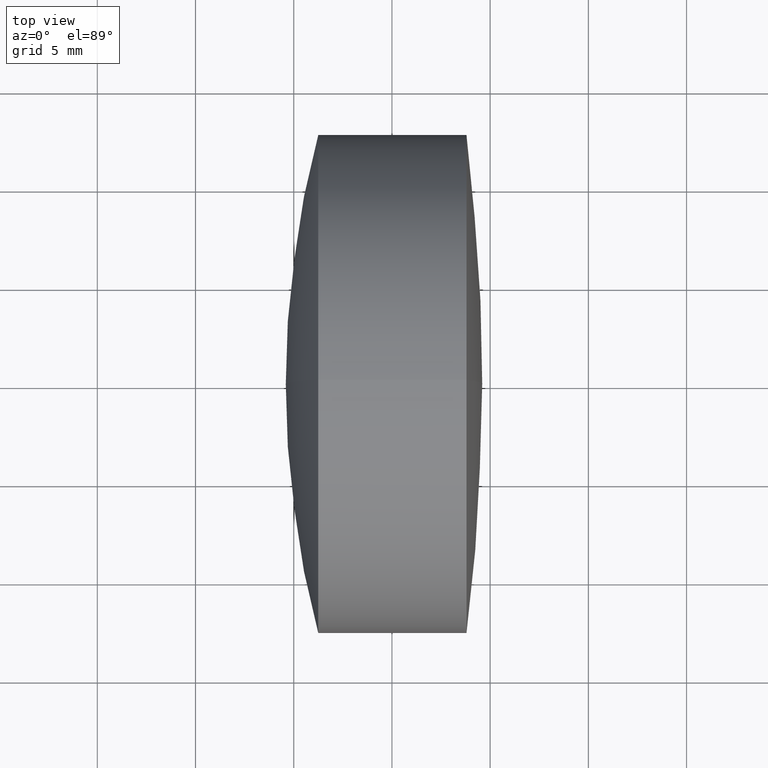
[diagram: clean part render]
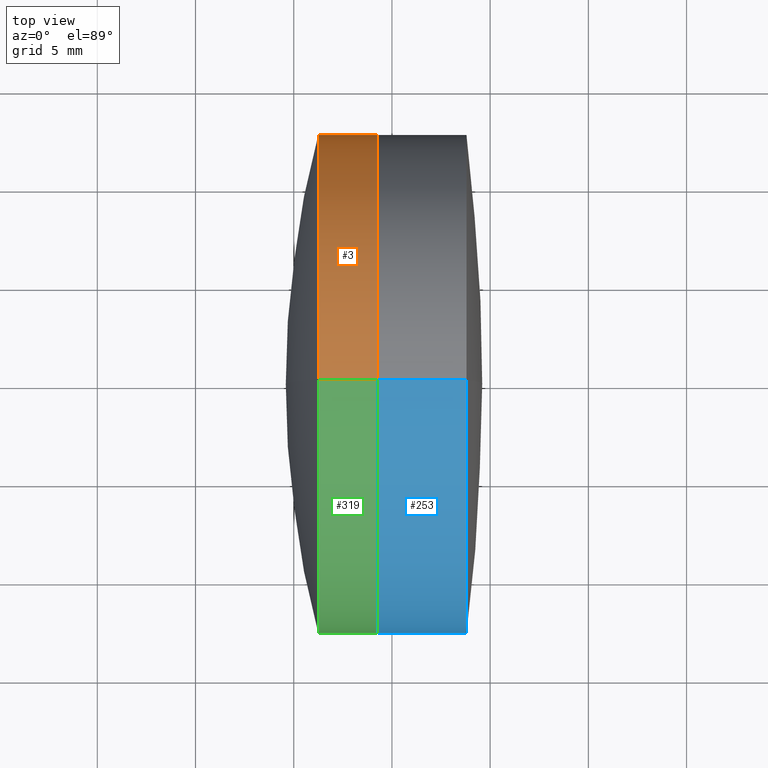
[diagram: same view with three faces highlighted in distinct colors, each labeled with its STEP entity id]
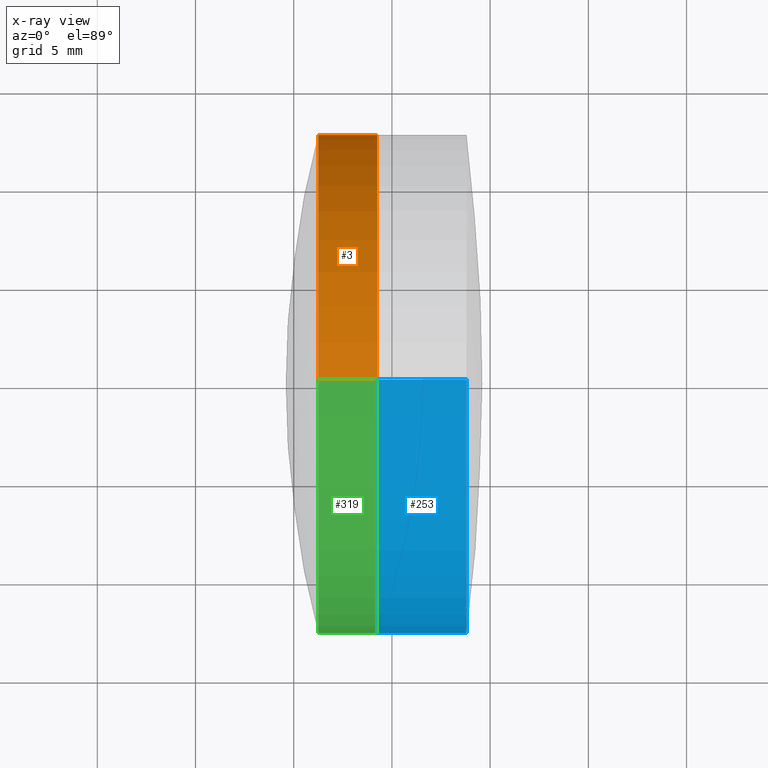
[diagram: x-ray of the same camera — body ghosted, the three highlighted faces saturated]
A machine part, top view with three faces highlighted in distinct colors.
The next image is the same camera in x-ray (body ghosted, the three faces saturated) — at least one of them is partly hidden behind the body in this view.
Their STEP definitions:

[orange] entity #3 — the highlighted cylindrical surface (partial cylindrical patch) has radius 12.7 mm, axis along (-1, -0, -0).
#3 = ADVANCED_FACE ( 'NONE', ( #147 ), #324, .T. ) ;
#9 = VECTOR ( 'NONE', #164, 1000.000000000000000 ) ;
#16 = EDGE_LOOP ( 'NONE', ( #70, #318, #228, #256 ) ) ;
#52 = EDGE_CURVE ( 'NONE', #74, #299, #307, .T. ) ;
#62 = CARTESIAN_POINT ( 'NONE',  ( 161.8331716928335000, 0.0000000000000000000, 0.0000000000000000000 ) ) ;
#67 = VECTOR ( 'NONE', #190, 1000.000000000000000 ) ;
#70 = ORIENTED_EDGE ( 'NONE', *, *, #118, .T. ) ;
#73 = DIRECTION ( 'NONE',  ( -1.000000000000000000, -0.0000000000000000000, -0.0000000000000000000 ) ) ;
#74 = VERTEX_POINT ( 'NONE', #188 ) ;
#76 = DIRECTION ( 'NONE',  ( 0.0000000000000000000, 0.0000000000000000000, 1.000000000000000000 ) ) ;
#83 = VERTEX_POINT ( 'NONE', #223 ) ;
#118 = EDGE_CURVE ( 'NONE', #343, #74, #238, .T. ) ;
#129 = EDGE_CURVE ( 'NONE', #83, #299, #247, .T. ) ;
#130 = CARTESIAN_POINT ( 'NONE',  ( 241.2493130870641400, 1.555301434917139200E-015, -12.70000000000001000 ) ) ;
#138 = CARTESIAN_POINT ( 'NONE',  ( 161.8331716928335000, 0.0000000000000000000, 12.69999999999999600 ) ) ;
#140 = LINE ( 'NONE', #138, #67 ) ;
#145 = CARTESIAN_POINT ( 'NONE',  ( 244.2464114144539700, 0.0000000000000000000, 12.69999999999999600 ) ) ;
#147 = FACE_OUTER_BOUND ( 'NONE', #16, .T. ) ;
#151 = CARTESIAN_POINT ( 'NONE',  ( 161.8331716928335000, 1.555301434917138000E-015, -12.69999999999999600 ) ) ;
#164 = DIRECTION ( 'NONE',  ( -1.000000000000000000, -0.0000000000000000000, -0.0000000000000000000 ) ) ;
#188 = CARTESIAN_POINT ( 'NONE',  ( 244.2464114144539700, 1.555301434917138000E-015, -12.69999999999999600 ) ) ;
#190 = DIRECTION ( 'NONE',  ( -1.000000000000000000, -0.0000000000000000000, -0.0000000000000000000 ) ) ;
#216 = EDGE_CURVE ( 'NONE', #343, #83, #140, .T. ) ;
#223 = CARTESIAN_POINT ( 'NONE',  ( 241.2493130870641400, 0.0000000000000000000, 12.70000000000000600 ) ) ;
#228 = ORIENTED_EDGE ( 'NONE', *, *, #129, .F. ) ;
#229 = AXIS2_PLACEMENT_3D ( 'NONE', #334, #337, #338 ) ;
#238 = CIRCLE ( 'NONE', #321, 12.69999999999999600 ) ;
#247 = CIRCLE ( 'NONE', #229, 12.69999999999999600 ) ;
#256 = ORIENTED_EDGE ( 'NONE', *, *, #216, .F. ) ;
#299 = VERTEX_POINT ( 'NONE', #130 ) ;
#307 = LINE ( 'NONE', #151, #9 ) ;
#318 = ORIENTED_EDGE ( 'NONE', *, *, #52, .T. ) ;
#320 = CARTESIAN_POINT ( 'NONE',  ( 244.2464114144539700, 0.0000000000000000000, 0.0000000000000000000 ) ) ;
#321 = AXIS2_PLACEMENT_3D ( 'NONE', #320, #329, #330 ) ;
#324 = CYLINDRICAL_SURFACE ( 'NONE', #347, 12.69999999999999600 ) ;
#329 = DIRECTION ( 'NONE',  ( -1.000000000000000000, -0.0000000000000000000, -0.0000000000000000000 ) ) ;
#330 = DIRECTION ( 'NONE',  ( 0.0000000000000000000, 0.0000000000000000000, 1.000000000000000000 ) ) ;
#334 = CARTESIAN_POINT ( 'NONE',  ( 241.2493130870641400, 0.0000000000000000000, 0.0000000000000000000 ) ) ;
#337 = DIRECTION ( 'NONE',  ( -1.000000000000000000, -0.0000000000000000000, -0.0000000000000000000 ) ) ;
#338 = DIRECTION ( 'NONE',  ( 0.0000000000000000000, 0.0000000000000000000, 1.000000000000000000 ) ) ;
#343 = VERTEX_POINT ( 'NONE', #145 ) ;
#347 = AXIS2_PLACEMENT_3D ( 'NONE', #62, #73, #76 ) ;

[blue] entity #253 — the highlighted cylindrical surface (partial cylindrical patch) has radius 12.7 mm, axis along (-1, -0, -0).
#20 = DIRECTION ( 'NONE',  ( -1.000000000000000000, -0.0000000000000000000, -0.0000000000000000000 ) ) ;
#22 = ORIENTED_EDGE ( 'NONE', *, *, #173, .T. ) ;
#33 = ORIENTED_EDGE ( 'NONE', *, *, #78, .F. ) ;
#34 = EDGE_CURVE ( 'NONE', #109, #55, #250, .T. ) ;
#36 = CARTESIAN_POINT ( 'NONE',  ( 244.2464114144539700, 0.0000000000000000000, 12.69999999999999600 ) ) ;
#44 = FACE_OUTER_BOUND ( 'NONE', #95, .T. ) ;
#55 = VERTEX_POINT ( 'NONE', #79 ) ;
#66 = LINE ( 'NONE', #156, #269 ) ;
#69 = VECTOR ( 'NONE', #20, 1000.000000000000000 ) ;
#78 = EDGE_CURVE ( 'NONE', #336, #281, #280, .T. ) ;
#79 = CARTESIAN_POINT ( 'NONE',  ( 248.7957960076102500, 0.0000000000000000000, 12.69999999999999900 ) ) ;
#95 = EDGE_LOOP ( 'NONE', ( #325, #242, #22, #33 ) ) ;
#98 = CARTESIAN_POINT ( 'NONE',  ( -0.5519199926577972300, 0.0000000000000000000, 12.69999999999999900 ) ) ;
#109 = VERTEX_POINT ( 'NONE', #305 ) ;
#110 = CARTESIAN_POINT ( 'NONE',  ( 248.7957960076102500, 0.0000000000000000000, 0.0000000000000000000 ) ) ;
#111 = DIRECTION ( 'NONE',  ( -1.000000000000000000, -0.0000000000000000000, -0.0000000000000000000 ) ) ;
#112 = DIRECTION ( 'NONE',  ( 0.0000000000000000000, 0.0000000000000000000, 1.000000000000000000 ) ) ;
#153 = CARTESIAN_POINT ( 'NONE',  ( 244.2464114144539700, 1.555301434917138000E-015, -12.69999999999999900 ) ) ;
#156 = CARTESIAN_POINT ( 'NONE',  ( -0.5519199926577972300, 1.555301434917138400E-015, -12.69999999999999900 ) ) ;
#173 = EDGE_CURVE ( 'NONE', #55, #281, #209, .T. ) ;
#202 = CYLINDRICAL_SURFACE ( 'NONE', #286, 12.69999999999999900 ) ;
#205 = DIRECTION ( 'NONE',  ( -1.000000000000000000, -0.0000000000000000000, -0.0000000000000000000 ) ) ;
#209 = LINE ( 'NONE', #98, #69 ) ;
#226 = AXIS2_PLACEMENT_3D ( 'NONE', #110, #111, #112 ) ;
#240 = CARTESIAN_POINT ( 'NONE',  ( 244.2464114144539700, 0.0000000000000000000, 0.0000000000000000000 ) ) ;
#241 = DIRECTION ( 'NONE',  ( -1.000000000000000000, -0.0000000000000000000, -0.0000000000000000000 ) ) ;
#242 = ORIENTED_EDGE ( 'NONE', *, *, #34, .T. ) ;
#244 = DIRECTION ( 'NONE',  ( 0.0000000000000000000, 0.0000000000000000000, 1.000000000000000000 ) ) ;
#250 = CIRCLE ( 'NONE', #226, 12.69999999999999900 ) ;
#253 = ADVANCED_FACE ( 'NONE', ( #44 ), #202, .T. ) ;
#265 = EDGE_CURVE ( 'NONE', #109, #336, #66, .T. ) ;
#269 = VECTOR ( 'NONE', #322, 1000.000000000000000 ) ;
#270 = CARTESIAN_POINT ( 'NONE',  ( -0.5519199926577972300, 0.0000000000000000000, 0.0000000000000000000 ) ) ;
#279 = DIRECTION ( 'NONE',  ( 0.0000000000000000000, 0.0000000000000000000, 1.000000000000000000 ) ) ;
#280 = CIRCLE ( 'NONE', #340, 12.69999999999999800 ) ;
#281 = VERTEX_POINT ( 'NONE', #36 ) ;
#286 = AXIS2_PLACEMENT_3D ( 'NONE', #270, #205, #279 ) ;
#305 = CARTESIAN_POINT ( 'NONE',  ( 248.7957960076102500, 1.555301434917138400E-015, -12.69999999999999900 ) ) ;
#322 = DIRECTION ( 'NONE',  ( -1.000000000000000000, -0.0000000000000000000, -0.0000000000000000000 ) ) ;
#325 = ORIENTED_EDGE ( 'NONE', *, *, #265, .F. ) ;
#336 = VERTEX_POINT ( 'NONE', #153 ) ;
#340 = AXIS2_PLACEMENT_3D ( 'NONE', #240, #241, #244 ) ;

[green] entity #319 — the highlighted cylindrical surface (partial cylindrical patch) has radius 12.7 mm, axis along (-1, -0, -0).
#9 = VECTOR ( 'NONE', #164, 1000.000000000000000 ) ;
#50 = CIRCLE ( 'NONE', #203, 12.69999999999999600 ) ;
#52 = EDGE_CURVE ( 'NONE', #74, #299, #307, .T. ) ;
#67 = VECTOR ( 'NONE', #190, 1000.000000000000000 ) ;
#74 = VERTEX_POINT ( 'NONE', #188 ) ;
#83 = VERTEX_POINT ( 'NONE', #223 ) ;
#91 = EDGE_CURVE ( 'NONE', #74, #343, #50, .T. ) ;
#92 = DIRECTION ( 'NONE',  ( -1.000000000000000000, -0.0000000000000000000, -0.0000000000000000000 ) ) ;
#124 = DIRECTION ( 'NONE',  ( 0.0000000000000000000, 0.0000000000000000000, 1.000000000000000000 ) ) ;
#125 = EDGE_LOOP ( 'NONE', ( #162, #303, #235, #314 ) ) ;
#130 = CARTESIAN_POINT ( 'NONE',  ( 241.2493130870641400, 1.555301434917139200E-015, -12.70000000000001000 ) ) ;
#138 = CARTESIAN_POINT ( 'NONE',  ( 161.8331716928335000, 0.0000000000000000000, 12.69999999999999600 ) ) ;
#140 = LINE ( 'NONE', #138, #67 ) ;
#145 = CARTESIAN_POINT ( 'NONE',  ( 244.2464114144539700, 0.0000000000000000000, 12.69999999999999600 ) ) ;
#151 = CARTESIAN_POINT ( 'NONE',  ( 161.8331716928335000, 1.555301434917138000E-015, -12.69999999999999600 ) ) ;
#162 = ORIENTED_EDGE ( 'NONE', *, *, #52, .F. ) ;
#164 = DIRECTION ( 'NONE',  ( -1.000000000000000000, -0.0000000000000000000, -0.0000000000000000000 ) ) ;
#172 = AXIS2_PLACEMENT_3D ( 'NONE', #227, #236, #221 ) ;
#188 = CARTESIAN_POINT ( 'NONE',  ( 244.2464114144539700, 1.555301434917138000E-015, -12.69999999999999600 ) ) ;
#190 = DIRECTION ( 'NONE',  ( -1.000000000000000000, -0.0000000000000000000, -0.0000000000000000000 ) ) ;
#203 = AXIS2_PLACEMENT_3D ( 'NONE', #266, #271, #272 ) ;
#216 = EDGE_CURVE ( 'NONE', #343, #83, #140, .T. ) ;
#221 = DIRECTION ( 'NONE',  ( 0.0000000000000000000, 0.0000000000000000000, 1.000000000000000000 ) ) ;
#222 = FACE_OUTER_BOUND ( 'NONE', #125, .T. ) ;
#223 = CARTESIAN_POINT ( 'NONE',  ( 241.2493130870641400, 0.0000000000000000000, 12.70000000000000600 ) ) ;
#225 = EDGE_CURVE ( 'NONE', #299, #83, #275, .T. ) ;
#227 = CARTESIAN_POINT ( 'NONE',  ( 241.2493130870641400, 0.0000000000000000000, 0.0000000000000000000 ) ) ;
#235 = ORIENTED_EDGE ( 'NONE', *, *, #216, .T. ) ;
#236 = DIRECTION ( 'NONE',  ( -1.000000000000000000, -0.0000000000000000000, -0.0000000000000000000 ) ) ;
#248 = AXIS2_PLACEMENT_3D ( 'NONE', #315, #92, #124 ) ;
#266 = CARTESIAN_POINT ( 'NONE',  ( 244.2464114144539700, 0.0000000000000000000, 0.0000000000000000000 ) ) ;
#271 = DIRECTION ( 'NONE',  ( -1.000000000000000000, -0.0000000000000000000, -0.0000000000000000000 ) ) ;
#272 = DIRECTION ( 'NONE',  ( 0.0000000000000000000, 0.0000000000000000000, 1.000000000000000000 ) ) ;
#275 = CIRCLE ( 'NONE', #172, 12.69999999999999600 ) ;
#296 = CYLINDRICAL_SURFACE ( 'NONE', #248, 12.69999999999999600 ) ;
#299 = VERTEX_POINT ( 'NONE', #130 ) ;
#303 = ORIENTED_EDGE ( 'NONE', *, *, #91, .T. ) ;
#307 = LINE ( 'NONE', #151, #9 ) ;
#314 = ORIENTED_EDGE ( 'NONE', *, *, #225, .F. ) ;
#315 = CARTESIAN_POINT ( 'NONE',  ( 161.8331716928335000, 0.0000000000000000000, 0.0000000000000000000 ) ) ;
#319 = ADVANCED_FACE ( 'NONE', ( #222 ), #296, .T. ) ;
#343 = VERTEX_POINT ( 'NONE', #145 ) ;